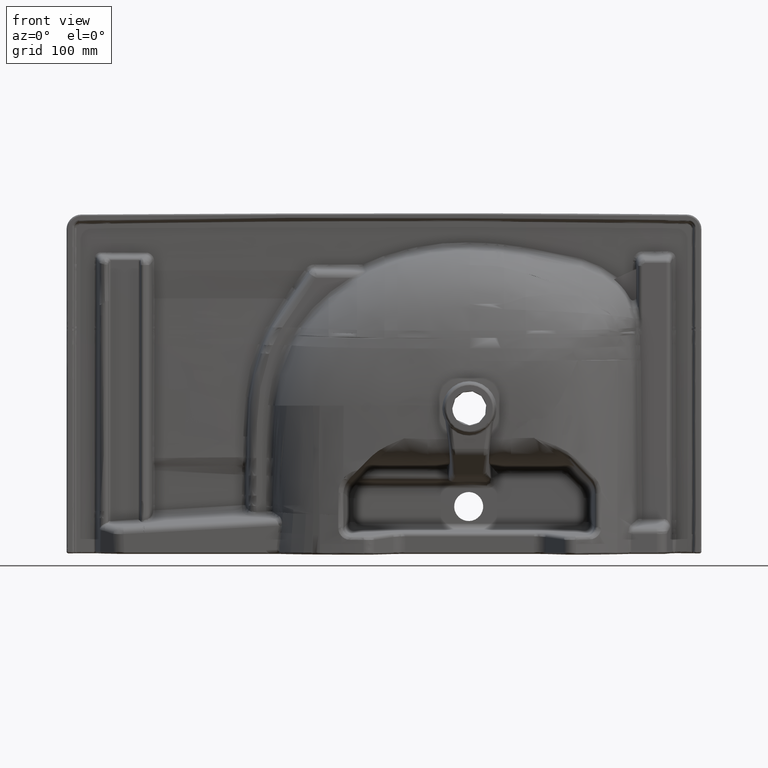
[diagram: clean part render]
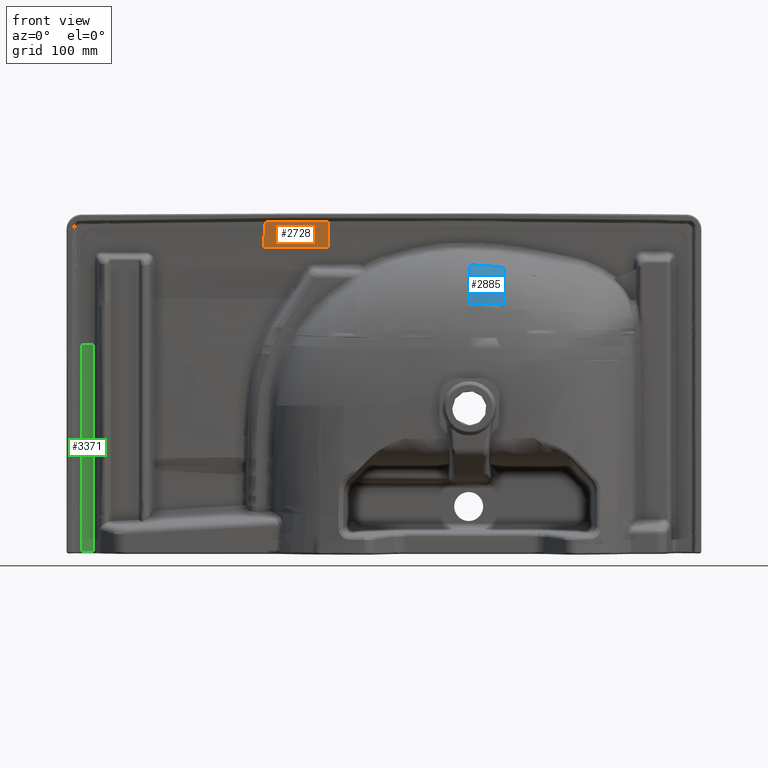
[diagram: same view with three faces highlighted in distinct colors, each labeled with its STEP entity id]
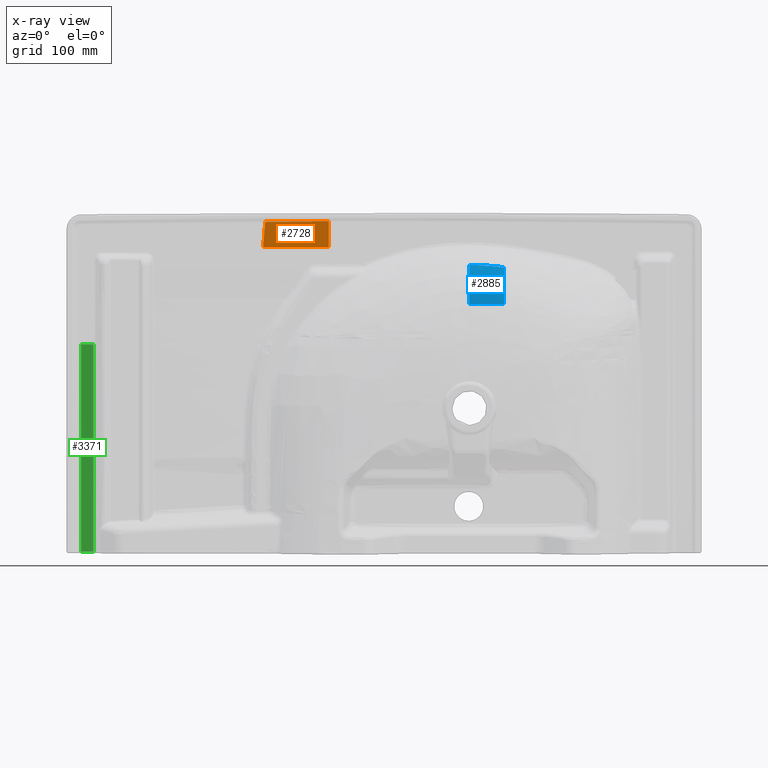
[diagram: x-ray of the same camera — body ghosted, the three highlighted faces saturated]
A machine part, front view with three faces highlighted in distinct colors.
The next image is the same camera in x-ray (body ghosted, the three faces saturated) — at least one of them is partly hidden behind the body in this view.
Their STEP definitions:

[orange] entity #2728 — the highlighted face is a freeform B-spline surface patch.
#2273=B_SPLINE_SURFACE_WITH_KNOTS('',3,3,((#42595,#42596,#42597,#42598),
(#42599,#42600,#42601,#42602),(#42603,#42604,#42605,#42606),(#42607,#42608,
#42609,#42610)),.UNSPECIFIED.,.F.,.F.,.F.,(4,4),(4,4),(0.,1.),(0.,1.),
 .UNSPECIFIED.);
#2728=ADVANCED_FACE('',(#4449),#2273,.T.);
#4449=FACE_OUTER_BOUND('',#5755,.T.);
#5755=EDGE_LOOP('',(#7716,#7717,#7718,#7719));
#7716=ORIENTED_EDGE('',*,*,#15592,.F.);
#7717=ORIENTED_EDGE('',*,*,#15593,.F.);
#7718=ORIENTED_EDGE('',*,*,#15594,.F.);
#7719=ORIENTED_EDGE('',*,*,#15595,.F.);
#13714=VERTEX_POINT('',#42577);
#13715=VERTEX_POINT('',#42578);
#13716=VERTEX_POINT('',#42585);
#13717=VERTEX_POINT('',#42590);
#15592=EDGE_CURVE('',#13714,#13715,#18608,.T.);
#15593=EDGE_CURVE('',#13716,#13714,#18609,.T.);
#15594=EDGE_CURVE('',#13717,#13716,#18610,.T.);
#15595=EDGE_CURVE('',#13715,#13717,#18611,.T.);
#18608=B_SPLINE_CURVE_WITH_KNOTS('',3,(#42573,#42574,#42575,#42576),
 .UNSPECIFIED.,.F.,.F.,(4,4),(0.,1.),.UNSPECIFIED.);
#18609=B_SPLINE_CURVE_WITH_KNOTS('',3,(#42579,#42580,#42581,#42582,#42583,
#42584),.UNSPECIFIED.,.F.,.F.,(4,2,4),(0.,0.515290433342165,1.),
 .UNSPECIFIED.);
#18610=B_SPLINE_CURVE_WITH_KNOTS('',3,(#42586,#42587,#42588,#42589),
 .UNSPECIFIED.,.F.,.F.,(4,4),(0.,1.),.UNSPECIFIED.);
#18611=B_SPLINE_CURVE_WITH_KNOTS('',3,(#42591,#42592,#42593,#42594),
 .UNSPECIFIED.,.F.,.F.,(4,4),(0.,1.),.UNSPECIFIED.);
#42573=CARTESIAN_POINT('',(-277.259585931258,-341.920008518953,-20.3458921221167));
#42574=CARTESIAN_POINT('',(-276.298730027962,-353.208415221619,-20.7095877217784));
#42575=CARTESIAN_POINT('',(-275.336697502174,-364.496642634981,-21.0757482760457));
#42576=CARTESIAN_POINT('',(-274.373581909266,-375.784703243393,-21.4441780474096));
#42577=CARTESIAN_POINT('',(-277.259585831486,-341.92006586475,-20.3458820647441));
#42578=CARTESIAN_POINT('',(-274.373581909266,-375.784703243393,-21.4441780474096));
#42579=CARTESIAN_POINT('',(-189.375188928945,-341.893337613698,-20.8548033108633));
#42580=CARTESIAN_POINT('',(-204.470688926794,-341.896634215894,-20.8050073578269));
#42581=CARTESIAN_POINT('',(-219.56611037028,-341.90068509365,-20.7341244147978));
#42582=CARTESIAN_POINT('',(-248.860935021331,-341.910010229541,-20.5556426750433));
#42583=CARTESIAN_POINT('',(-263.060312512101,-341.914887884068,-20.4568818502418));
#42584=CARTESIAN_POINT('',(-277.259585731713,-341.920123210546,-20.3458720073716));
#42585=CARTESIAN_POINT('',(-189.37387262501,-341.893337386034,-20.854807654957));
#42586=CARTESIAN_POINT('',(-189.372556321076,-376.262950116371,-22.0458397240105));
#42587=CARTESIAN_POINT('',(-189.372556321076,-364.806436208815,-21.6481458581793));
#42588=CARTESIAN_POINT('',(-189.372556321076,-353.349899814649,-21.2510990511956));
#42589=CARTESIAN_POINT('',(-189.372556321076,-341.89333715837,-20.8548119990507));
#42590=CARTESIAN_POINT('',(-189.372556321068,-376.262950116371,-22.0458397240106));
#42591=CARTESIAN_POINT('',(-274.373581909266,-375.784703243393,-21.4441780474096));
#42592=CARTESIAN_POINT('',(-246.040741249501,-376.001860642223,-21.7172700127208));
#42593=CARTESIAN_POINT('',(-217.707083880771,-376.160293420754,-21.9211356461091));
#42594=CARTESIAN_POINT('',(-189.372556321064,-376.262950116371,-22.0458397240106));
#42595=CARTESIAN_POINT('',(-277.786361307426,-341.457012889161,-20.3271586979449));
#42596=CARTESIAN_POINT('',(-277.798659338838,-353.002280917904,-20.6909889913656));
#42597=CARTESIAN_POINT('',(-277.810932839042,-364.547598697693,-21.0557035383968));
#42598=CARTESIAN_POINT('',(-277.823178983846,-376.092966019346,-21.4212019232891));
#42599=CARTESIAN_POINT('',(-248.142411949837,-341.561430101912,-20.5629074045653));
#42600=CARTESIAN_POINT('',(-248.150686259475,-353.129028340342,-20.9449141924189));
#42601=CARTESIAN_POINT('',(-248.158936665103,-364.696678691939,-21.3277732062435));
#42602=CARTESIAN_POINT('',(-248.167160350389,-376.264380956965,-21.7113785236903));
#42603=CARTESIAN_POINT('',(-218.483569102701,-341.64268659406,-20.7510274801431));
#42604=CARTESIAN_POINT('',(-218.491185608428,-353.226750269828,-21.1421311965223));
#42605=CARTESIAN_POINT('',(-218.498778584987,-364.810868657606,-21.5340475358036));
#42606=CARTESIAN_POINT('',(-218.506345145432,-376.395041568524,-21.9266651189093));
#42607=CARTESIAN_POINT('',(-188.825058109079,-341.687960110087,-20.8495059618888));
#42608=CARTESIAN_POINT('',(-188.831764094897,-353.282088343943,-21.2507000081227));
#42609=CARTESIAN_POINT('',(-188.838446894782,-364.876273874265,-21.6526684864225));
#42610=CARTESIAN_POINT('',(-188.845103558753,-376.470516522512,-22.0552945567964));

[blue] entity #2885 — the highlighted face is a freeform B-spline surface patch.
#2344=B_SPLINE_SURFACE_WITH_KNOTS('',3,3,((#48957,#48958,#48959,#48960,
#48961,#48962,#48963,#48964,#48965,#48966,#48967,#48968,#48969,#48970,#48971,
#48972,#48973,#48974,#48975),(#48976,#48977,#48978,#48979,#48980,#48981,
#48982,#48983,#48984,#48985,#48986,#48987,#48988,#48989,#48990,#48991,#48992,
#48993,#48994),(#48995,#48996,#48997,#48998,#48999,#49000,#49001,#49002,
#49003,#49004,#49005,#49006,#49007,#49008,#49009,#49010,#49011,#49012,#49013),
(#49014,#49015,#49016,#49017,#49018,#49019,#49020,#49021,#49022,#49023,
#49024,#49025,#49026,#49027,#49028,#49029,#49030,#49031,#49032),(#49033,
#49034,#49035,#49036,#49037,#49038,#49039,#49040,#49041,#49042,#49043,#49044,
#49045,#49046,#49047,#49048,#49049,#49050,#49051),(#49052,#49053,#49054,
#49055,#49056,#49057,#49058,#49059,#49060,#49061,#49062,#49063,#49064,#49065,
#49066,#49067,#49068,#49069,#49070),(#49071,#49072,#49073,#49074,#49075,
#49076,#49077,#49078,#49079,#49080,#49081,#49082,#49083,#49084,#49085,#49086,
#49087,#49088,#49089),(#49090,#49091,#49092,#49093,#49094,#49095,#49096,
#49097,#49098,#49099,#49100,#49101,#49102,#49103,#49104,#49105,#49106,#49107,
#49108),(#49109,#49110,#49111,#49112,#49113,#49114,#49115,#49116,#49117,
#49118,#49119,#49120,#49121,#49122,#49123,#49124,#49125,#49126,#49127),
(#49128,#49129,#49130,#49131,#49132,#49133,#49134,#49135,#49136,#49137,
#49138,#49139,#49140,#49141,#49142,#49143,#49144,#49145,#49146),(#49147,
#49148,#49149,#49150,#49151,#49152,#49153,#49154,#49155,#49156,#49157,#49158,
#49159,#49160,#49161,#49162,#49163,#49164,#49165),(#49166,#49167,#49168,
#49169,#49170,#49171,#49172,#49173,#49174,#49175,#49176,#49177,#49178,#49179,
#49180,#49181,#49182,#49183,#49184),(#49185,#49186,#49187,#49188,#49189,
#49190,#49191,#49192,#49193,#49194,#49195,#49196,#49197,#49198,#49199,#49200,
#49201,#49202,#49203)),.UNSPECIFIED.,.F.,.F.,.F.,(4,3,3,3,4),(4,3,3,3,3,
3,4),(0.,0.25,0.5,0.75,1.),(0.,0.125,0.25,0.5,0.625,0.75,1.),
 .UNSPECIFIED.);
#2885=ADVANCED_FACE('',(#4606),#2344,.T.);
#4606=FACE_OUTER_BOUND('',#5912,.T.);
#5912=EDGE_LOOP('',(#8420,#8421,#8422,#8423,#8424,#8425));
#8420=ORIENTED_EDGE('',*,*,#15967,.F.);
#8421=ORIENTED_EDGE('',*,*,#15968,.T.);
#8422=ORIENTED_EDGE('',*,*,#15969,.T.);
#8423=ORIENTED_EDGE('',*,*,#15872,.T.);
#8424=ORIENTED_EDGE('',*,*,#15834,.T.);
#8425=ORIENTED_EDGE('',*,*,#15831,.T.);
#13810=VERTEX_POINT('',#45169);
#13851=VERTEX_POINT('',#46131);
#13853=VERTEX_POINT('',#46137);
#13877=VERTEX_POINT('',#46859);
#13931=VERTEX_POINT('',#48795);
#13932=VERTEX_POINT('',#48952);
#15831=EDGE_CURVE('',#13853,#13851,#18789,.T.);
#15834=EDGE_CURVE('',#13810,#13853,#18792,.T.);
#15872=EDGE_CURVE('',#13877,#13810,#18825,.T.);
#15967=EDGE_CURVE('',#13931,#13851,#18889,.T.);
#15968=EDGE_CURVE('',#13931,#13932,#18890,.T.);
#15969=EDGE_CURVE('',#13932,#13877,#18891,.T.);
#18789=B_SPLINE_CURVE_WITH_KNOTS('',3,(#46133,#46134,#46135,#46136),
 .UNSPECIFIED.,.F.,.F.,(4,4),(0.,1.),.UNSPECIFIED.);
#18792=B_SPLINE_CURVE_WITH_KNOTS('',3,(#46174,#46175,#46176,#46177),
 .UNSPECIFIED.,.F.,.F.,(4,4),(0.,1.),.UNSPECIFIED.);
#18825=B_SPLINE_CURVE_WITH_KNOTS('',3,(#46849,#46850,#46851,#46852,#46853,
#46854,#46855,#46856,#46857,#46858),.UNSPECIFIED.,.F.,.F.,(4,2,2,2,4),(0.,
0.25,0.5,0.75,1.),.UNSPECIFIED.);
#18889=B_SPLINE_CURVE_WITH_KNOTS('',3,(#48796,#48797,#48798,#48799),
 .UNSPECIFIED.,.F.,.F.,(4,4),(0.,1.),.UNSPECIFIED.);
#18890=B_SPLINE_CURVE_WITH_KNOTS('',3,(#48940,#48941,#48942,#48943,#48944,
#48945,#48946,#48947,#48948,#48949,#48950,#48951),.UNSPECIFIED.,.F.,.F.,
(4,2,2,2,2,4),(0.,0.125,0.25,0.5,0.75,1.),.UNSPECIFIED.);
#18891=B_SPLINE_CURVE_WITH_KNOTS('',3,(#48953,#48954,#48955,#48956),
 .UNSPECIFIED.,.F.,.F.,(4,4),(0.,1.),.UNSPECIFIED.);
#45169=CARTESIAN_POINT('',(46.6771027324499,-314.225243891857,-78.7467857619092));
#46131=CARTESIAN_POINT('',(8.63590106481254,-317.714266869076,-78.9269526552541));
#46133=CARTESIAN_POINT('',(37.2271027324594,-315.699894576944,-78.8240689295326));
#46134=CARTESIAN_POINT('',(27.798640103383,-316.925796921416,-78.8883157490242));
#46135=CARTESIAN_POINT('',(18.28558872413,-317.434355335772,-78.9149681661568));
#46136=CARTESIAN_POINT('',(8.74496240574051,-317.70906805349,-78.9293652496332));
#46137=CARTESIAN_POINT('',(37.2271027324596,-315.699894576946,-78.8240689295301));
#46174=CARTESIAN_POINT('',(46.6771027324504,-314.225243891857,-78.7467857619093));
#46175=CARTESIAN_POINT('',(43.5368000444922,-314.805376509203,-78.7701686000069));
#46176=CARTESIAN_POINT('',(40.3801429093361,-315.295743895946,-78.7957806741998));
#46177=CARTESIAN_POINT('',(37.2271027324594,-315.699894576944,-78.8240689295324));
#46849=CARTESIAN_POINT('',(46.6771027324592,-265.409034999292,-112.252882968467));
#46850=CARTESIAN_POINT('',(46.6771027324592,-270.090672556004,-110.490601269427));
#46851=CARTESIAN_POINT('',(46.6771027324595,-274.684674512238,-108.528206807158));
#46852=CARTESIAN_POINT('',(46.6771027324595,-283.61051752563,-104.004782834331));
#46853=CARTESIAN_POINT('',(46.6771027324591,-287.965100455135,-101.424140296751));
#46854=CARTESIAN_POINT('',(46.677102732459,-296.187315156118,-95.7683168583903));
#46855=CARTESIAN_POINT('',(46.6771027324589,-300.070686614507,-92.6797098387205));
#46856=CARTESIAN_POINT('',(46.6771027324589,-307.440462697528,-86.0480773629385));
#46857=CARTESIAN_POINT('',(46.6771027324591,-310.953582064923,-82.5356329796117));
#46858=CARTESIAN_POINT('',(46.6771027324591,-314.225243891856,-78.746785761909));
#46859=CARTESIAN_POINT('',(46.6771027324594,-265.409034999293,-112.252882968467));
#48795=CARTESIAN_POINT('',(0.144676804151766,-317.522711475383,-79.3674435301628));
#48796=CARTESIAN_POINT('',(0.144518058125211,-317.523685974936,-79.3682724551218));
#48797=CARTESIAN_POINT('',(2.937932969423,-317.604263249981,-79.2221140099398));
#48798=CARTESIAN_POINT('',(5.73236116094078,-317.671768693203,-79.0759025337686));
#48799=CARTESIAN_POINT('',(8.52702205254518,-317.715051418454,-78.9296788790158));
#48940=CARTESIAN_POINT('',(0.144570940834238,-317.52710350195,-79.3711653918266));
#48941=CARTESIAN_POINT('',(0.142349766184604,-315.769156242269,-81.4262417653002));
#48942=CARTESIAN_POINT('',(0.140994771100907,-313.988919616545,-83.3394522209296));
#48943=CARTESIAN_POINT('',(0.137936807053437,-310.330810848792,-87.0683347470841));
#48944=CARTESIAN_POINT('',(0.135932607775407,-308.434764921342,-88.8895261898608));
#48945=CARTESIAN_POINT('',(0.128867297151908,-302.532603270621,-94.1886106427598));
#48946=CARTESIAN_POINT('',(0.122595062282763,-298.288652568799,-97.5050179494013));
#48947=CARTESIAN_POINT('',(0.11226677724475,-289.344529893239,-103.451595581677));
#48948=CARTESIAN_POINT('',(0.107268086500618,-284.604890781108,-106.107164920872));
#48949=CARTESIAN_POINT('',(0.101323529119899,-274.976437210975,-110.661873413082));
#48950=CARTESIAN_POINT('',(0.100422980049738,-270.113571473505,-112.581148921733));
#48951=CARTESIAN_POINT('',(0.0986932582040273,-265.303503673876,-114.266540613575));
#48952=CARTESIAN_POINT('',(0.0986504987027176,-265.303398032333,-114.26623873775));
#48953=CARTESIAN_POINT('',(0.0986932582075634,-265.303503673876,-114.266540613575));
#48954=CARTESIAN_POINT('',(15.6457062392232,-265.310797084069,-114.127374056767));
#48955=CARTESIAN_POINT('',(31.1849844784979,-265.328421407606,-113.791081930323));
#48956=CARTESIAN_POINT('',(46.6771027324621,-265.409034999293,-112.252882968467));
#48957=CARTESIAN_POINT('',(62.2122169738954,-310.633543881327,-78.6286211728233));
#48958=CARTESIAN_POINT('',(61.5543970867135,-308.930367387738,-80.7590259739709));
#48959=CARTESIAN_POINT('',(60.8925296857266,-307.184895782669,-82.751697377793));
#48960=CARTESIAN_POINT('',(60.2272557181451,-305.418658548744,-84.6604988991286));
#48961=CARTESIAN_POINT('',(59.5619817505635,-303.652421314819,-86.5693004204642));
#48962=CARTESIAN_POINT('',(58.8816716292423,-301.824190414955,-88.4318206058856));
#48963=CARTESIAN_POINT('',(58.1895884193637,-299.928961495069,-90.2364052601873));
#48964=CARTESIAN_POINT('',(56.8054219996066,-296.138503655298,-93.8455745687906));
#48965=CARTESIAN_POINT('',(55.3701019302041,-292.055532391919,-97.2282077807138));
#48966=CARTESIAN_POINT('',(53.9305294506452,-287.746778286732,-100.253235341311));
#48967=CARTESIAN_POINT('',(53.2107432108658,-285.592401234139,-101.76574912161));
#48968=CARTESIAN_POINT('',(52.4891201228324,-283.38269327013,-103.193080462904));
#48969=CARTESIAN_POINT('',(51.7682070724017,-281.122974146261,-104.532335318424));
#48970=CARTESIAN_POINT('',(51.047294021971,-278.863255022392,-105.871590173945));
#48971=CARTESIAN_POINT('',(50.3263617238706,-276.548007273598,-107.121911199584));
#48972=CARTESIAN_POINT('',(49.6163776748349,-274.226017663781,-108.27345359238));
#48973=CARTESIAN_POINT('',(48.1964095767634,-269.582038444147,-110.576538377971));
#48974=CARTESIAN_POINT('',(46.8134255575297,-264.894904652879,-112.508957578807));
#48975=CARTESIAN_POINT('',(45.4571919693294,-260.261244058722,-114.210623662219));
#48976=CARTESIAN_POINT('',(57.1788034625498,-312.1067985368,-78.5629756836396));
#48977=CARTESIAN_POINT('',(56.5742664916171,-310.388419163833,-80.6999594084731));
#48978=CARTESIAN_POINT('',(55.9659226622095,-308.626527321559,-82.697557636885));
#48979=CARTESIAN_POINT('',(55.3543782603299,-306.843115300427,-84.6108076830922));
#48980=CARTESIAN_POINT('',(54.7428338584503,-305.059703279295,-86.5240577292994));
#48981=CARTESIAN_POINT('',(54.1171620650154,-303.212566029021,-88.3912996857721));
#48982=CARTESIAN_POINT('',(53.4804165564155,-301.296769530862,-90.2006831524477));
#48983=CARTESIAN_POINT('',(52.2069255392155,-297.465176534544,-93.8194500857988));
#48984=CARTESIAN_POINT('',(50.8853815176146,-293.334008575904,-97.2120392141548));
#48985=CARTESIAN_POINT('',(49.5596437900837,-288.972675554365,-100.245347516246));
#48986=CARTESIAN_POINT('',(48.8967749263183,-286.792009043596,-101.762001667291));
#48987=CARTESIAN_POINT('',(48.232125064764,-284.55491389352,-103.193113305914));
#48988=CARTESIAN_POINT('',(47.5680530096992,-282.266924899087,-104.535715811299));
#48989=CARTESIAN_POINT('',(46.9039809546345,-279.978935904654,-105.878318316685));
#48990=CARTESIAN_POINT('',(46.2398159806772,-277.63447418798,-107.131535343568));
#48991=CARTESIAN_POINT('',(45.5856796589374,-275.283100031879,-108.28545646556));
#48992=CARTESIAN_POINT('',(44.2774070154577,-270.580351719677,-110.593298709544));
#48993=CARTESIAN_POINT('',(43.0028812211543,-265.833242198948,-112.528723929595));
#48994=CARTESIAN_POINT('',(41.7525189502198,-261.140153331524,-114.232088357947));
#48995=CARTESIAN_POINT('',(52.0076775035394,-313.417756808701,-78.4991828588661));
#48996=CARTESIAN_POINT('',(51.4583591181595,-311.685013012213,-80.6424916733569));
#48997=CARTESIAN_POINT('',(50.9053702511389,-309.90773827923,-82.6447773062428));
#48998=CARTESIAN_POINT('',(50.3493434870769,-308.108339326026,-84.5622258916367));
#48999=CARTESIAN_POINT('',(49.7933167230149,-306.308940372822,-86.4796744770305));
#49000=CARTESIAN_POINT('',(49.2244896509219,-304.444154284087,-88.3513887352853));
#49001=CARTESIAN_POINT('',(48.6456902540417,-302.509121096746,-90.1653323735609));
#49002=CARTESIAN_POINT('',(47.4880914602812,-298.639054722062,-93.7932196501122));
#49003=CARTESIAN_POINT('',(46.2873551024648,-294.462621653043,-97.1953372764918));
#49004=CARTESIAN_POINT('',(45.0831150701241,-290.05213660167,-100.23660710112));
#49005=CARTESIAN_POINT('',(44.4809950539537,-287.846894075984,-101.757242013434));
#49006=CARTESIAN_POINT('',(43.8773221726552,-285.584241519025,-103.19200032275));
#49007=CARTESIAN_POINT('',(43.2742100305789,-283.269926990475,-104.53784963326));
#49008=CARTESIAN_POINT('',(42.6710978885025,-280.955612461925,-105.88369894377));
#49009=CARTESIAN_POINT('',(42.067971425114,-278.583994515386,-107.139746623154));
#49010=CARTESIAN_POINT('',(41.473683973206,-276.20543293635,-108.296010085261));
#49011=CARTESIAN_POINT('',(40.2851090693899,-271.448309778277,-110.608537009475));
#49012=CARTESIAN_POINT('',(39.1262060377012,-266.646131948607,-112.547003436304));
#49013=CARTESIAN_POINT('',(37.9881806361309,-261.89873401387,-114.25212206907));
#49014=CARTESIAN_POINT('',(46.795878777147,-314.46414846338,-78.4424986670738));
#49015=CARTESIAN_POINT('',(46.3023413427293,-312.719290159027,-80.5909984896687));
#49016=CARTESIAN_POINT('',(45.8053382685439,-310.929175653842,-82.597123926857));
#49017=CARTESIAN_POINT('',(45.3055115103627,-309.116565189799,-84.5180328990548));
#49018=CARTESIAN_POINT('',(44.8056847521815,-307.303954725755,-86.4389418712525));
#49019=CARTESIAN_POINT('',(44.2944685537038,-305.424713286629,-88.3143899055411));
#49020=CARTESIAN_POINT('',(43.7744388745961,-303.474026240156,-90.1321903061249));
#49021=CARTESIAN_POINT('',(42.7343795163806,-299.57265214721,-93.7677911072925));
#49022=CARTESIAN_POINT('',(41.6563154121335,-295.359785281527,-97.178170524647));
#49023=CARTESIAN_POINT('',(40.575431860659,-290.909850510032,-100.226616086441));
#49024=CARTESIAN_POINT('',(40.0349900849217,-288.684883124284,-101.750838867338));
#49025=CARTESIAN_POINT('',(39.4932270847003,-286.401746334261,-103.188953867979));
#49026=CARTESIAN_POINT('',(38.951997698277,-284.066344888715,-104.537852642703));
#49027=CARTESIAN_POINT('',(38.4107683118537,-281.73094344317,-105.886751417427));
#49028=CARTESIAN_POINT('',(37.8695850153892,-279.337585553239,-107.145529632815));
#49029=CARTESIAN_POINT('',(37.3360797345286,-276.937250942184,-108.304108024857));
#49030=CARTESIAN_POINT('',(36.2690691728073,-272.136581720073,-110.62126480894));
#49031=CARTESIAN_POINT('',(35.2277829177853,-267.290258716165,-112.562956377161));
#49032=CARTESIAN_POINT('',(34.2042364754701,-262.499412546782,-114.270010568761));
#49033=CARTESIAN_POINT('',(41.5840800507546,-315.510540118058,-78.3858144752816));
#49034=CARTESIAN_POINT('',(41.1463235672991,-313.753567305841,-80.5395053059804));
#49035=CARTESIAN_POINT('',(40.705306285949,-311.950613028455,-82.5494705474713));
#49036=CARTESIAN_POINT('',(40.2616795336485,-310.124791053572,-84.4738399064729));
#49037=CARTESIAN_POINT('',(39.8180527813481,-308.298969078688,-86.3982092654744));
#49038=CARTESIAN_POINT('',(39.3644474564857,-306.40527228917,-88.2773910757969));
#49039=CARTESIAN_POINT('',(38.9031874951504,-304.438931383566,-90.0990482386889));
#49040=CARTESIAN_POINT('',(37.9806675724799,-300.506249572357,-93.7423625644728));
#49041=CARTESIAN_POINT('',(37.0252757218022,-296.256948910011,-97.1610037728022));
#49042=CARTESIAN_POINT('',(36.0677486511939,-291.767564418394,-100.216625071763));
#49043=CARTESIAN_POINT('',(35.5889851158897,-289.522872172585,-101.744435721243));
#49044=CARTESIAN_POINT('',(35.1091319967454,-287.219251149496,-103.185907413208));
#49045=CARTESIAN_POINT('',(34.6297853659752,-284.862762786955,-104.537855652146));
#49046=CARTESIAN_POINT('',(34.1504387352049,-282.506274424414,-105.889803891085));
#49047=CARTESIAN_POINT('',(33.6711986056644,-280.091176591091,-107.151312642475));
#49048=CARTESIAN_POINT('',(33.1984754958512,-277.669068948018,-108.312205964452));
#49049=CARTESIAN_POINT('',(32.2530292762247,-272.82485366187,-110.633992608406));
#49050=CARTESIAN_POINT('',(31.3293597978694,-267.934385483723,-112.578909318017));
#49051=CARTESIAN_POINT('',(30.4202923148094,-263.100091079695,-114.287899068451));
#49052=CARTESIAN_POINT('',(36.3260168191998,-316.305153847148,-78.335395264976));
#49053=CARTESIAN_POINT('',(35.9446946777574,-314.538303773651,-80.4932406470034));
#49054=CARTESIAN_POINT('',(35.5603587299667,-312.725029334249,-82.5062704293241));
#49055=CARTESIAN_POINT('',(35.1736628419999,-310.888737104276,-84.4334217539032));
#49056=CARTESIAN_POINT('',(34.7869669540331,-309.052444874303,-86.3605730784822));
#49057=CARTESIAN_POINT('',(34.3918108511061,-307.147414682156,-88.2428124009735));
#49058=CARTESIAN_POINT('',(33.9902428799308,-305.168894379638,-90.0676850683571));
#49059=CARTESIAN_POINT('',(33.1871069375804,-301.211853774602,-93.7174304031242));
#49060=CARTESIAN_POINT('',(32.3565751367768,-296.934570241051,-97.1431933552452));
#49061=CARTESIAN_POINT('',(31.5246455965596,-292.41498616601,-100.205290287504));
#49062=CARTESIAN_POINT('',(31.108680826451,-290.15519412849,-101.736338753633));
#49063=CARTESIAN_POINT('',(30.6918771672655,-287.835917299594,-103.180911359935));
#49064=CARTESIAN_POINT('',(30.2755564456653,-285.463322694764,-104.535738003675));
#49065=CARTESIAN_POINT('',(29.8592357240651,-283.090728089935,-105.890564647414));
#49066=CARTESIAN_POINT('',(29.4430823378731,-280.6590332243,-107.154722073612));
#49067=CARTESIAN_POINT('',(29.032285418394,-278.220306647701,-108.317912762589));
#49068=CARTESIAN_POINT('',(28.2106915794357,-273.342853494504,-110.644294140543));
#49069=CARTESIAN_POINT('',(27.4069616408173,-268.418678659554,-112.592613381204));
#49070=CARTESIAN_POINT('',(26.614754812258,-263.551333437211,-114.303711180607));
#49071=CARTESIAN_POINT('',(31.0857192664916,-316.881437961121,-78.2922252475118));
#49072=CARTESIAN_POINT('',(30.7603668262069,-315.107231003264,-80.4532667518722));
#49073=CARTESIAN_POINT('',(30.4323283187284,-313.286369782853,-82.468663233599));
#49074=CARTESIAN_POINT('',(30.1022290185018,-311.442495317149,-84.3979840576643));
#49075=CARTESIAN_POINT('',(29.7721297182752,-309.598620851444,-86.3273048817297));
#49076=CARTESIAN_POINT('',(29.4349951332627,-307.685478294108,-88.2119601223948));
#49077=CARTESIAN_POINT('',(29.092591125903,-305.698308719134,-90.0394156253355));
#49078=CARTESIAN_POINT('',(28.4077831111837,-301.723969569185,-93.6943266312168));
#49079=CARTESIAN_POINT('',(27.7005666053778,-297.42710109528,-97.1259761015485));
#49080=CARTESIAN_POINT('',(26.9925584637594,-292.886331766617,-100.193731386162));
#49081=CARTESIAN_POINT('',(26.6385543929501,-290.615947102285,-101.727609028468));
#49082=CARTESIAN_POINT('',(26.2839277226327,-288.285680424051,-103.174960634133));
#49083=CARTESIAN_POINT('',(25.929746062849,-285.901756735249,-104.532424879625));
#49084=CARTESIAN_POINT('',(25.5755644030654,-283.517833046447,-105.889889125116));
#49085=CARTESIAN_POINT('',(25.2215806852377,-281.074439734796,-107.15653932981));
#49086=CARTESIAN_POINT('',(24.8719364391424,-278.623963906469,-108.321944448798));
#49087=CARTESIAN_POINT('',(24.1726479469518,-273.723012249815,-110.652754686775));
#49088=CARTESIAN_POINT('',(23.4878032373112,-268.774843206975,-112.604552221348));
#49089=CARTESIAN_POINT('',(22.8117916576819,-263.883992802352,-114.317851905055));
#49090=CARTESIAN_POINT('',(25.8454217137835,-317.457722075094,-78.2490552300476));
#49091=CARTESIAN_POINT('',(25.5760389746563,-315.676158232877,-80.413292856741));
#49092=CARTESIAN_POINT('',(25.30429790749,-313.847710231458,-82.4310560378738));
#49093=CARTESIAN_POINT('',(25.0307951950036,-311.996253530022,-84.3625463614254));
#49094=CARTESIAN_POINT('',(24.7572924825172,-310.144796828585,-86.2940366849771));
#49095=CARTESIAN_POINT('',(24.4781794154193,-308.223541906059,-88.181107843816));
#49096=CARTESIAN_POINT('',(24.1949393718752,-306.227723058629,-90.0111461823139));
#49097=CARTESIAN_POINT('',(23.628459284787,-302.236085363769,-93.6712228593095));
#49098=CARTESIAN_POINT('',(23.0445580739788,-297.919631949508,-97.1087588478518));
#49099=CARTESIAN_POINT('',(22.4604713309591,-293.357677367223,-100.18217248482));
#49100=CARTESIAN_POINT('',(22.1684279594493,-291.07670007608,-101.718879303304));
#49101=CARTESIAN_POINT('',(21.8759782779999,-288.735443548508,-103.169009908331));
#49102=CARTESIAN_POINT('',(21.5839356800327,-286.340190775734,-104.529111755575));
#49103=CARTESIAN_POINT('',(21.2918930820656,-283.944938002959,-105.889213602819));
#49104=CARTESIAN_POINT('',(21.0000790326023,-281.489846245292,-107.158356586008));
#49105=CARTESIAN_POINT('',(20.7115874598908,-279.027621165237,-108.325976135007));
#49106=CARTESIAN_POINT('',(20.1346043144678,-274.103171005126,-110.661215233006));
#49107=CARTESIAN_POINT('',(19.568644833805,-269.131007754395,-112.616491061492));
#49108=CARTESIAN_POINT('',(19.0088285031058,-264.216652167493,-114.331992629503));
#49109=CARTESIAN_POINT('',(20.6585951528313,-317.819721323364,-78.2148077030865));
#49110=CARTESIAN_POINT('',(20.4438814752008,-316.033243395154,-80.3812549778328));
#49111=CARTESIAN_POINT('',(20.2272861502372,-314.199851978275,-82.4006647787987));
#49112=CARTESIAN_POINT('',(20.0093146016759,-312.343597347622,-84.3336918955695));
#49113=CARTESIAN_POINT('',(19.7913430531145,-310.487342716969,-86.2667190123402));
#49114=CARTESIAN_POINT('',(19.5689543846623,-308.56109129455,-88.1555252405556));
#49115=CARTESIAN_POINT('',(19.3433533265421,-306.56005124392,-89.9874584344618));
#49116=CARTESIAN_POINT('',(18.8921512103017,-302.557971142659,-93.6513248222743));
#49117=CARTESIAN_POINT('',(18.4274429004737,-298.230150799794,-97.0933284256628));
#49118=CARTESIAN_POINT('',(17.9629236891318,-293.65584595621,-100.171407468125));
#49119=CARTESIAN_POINT('',(17.7306640834609,-291.368693534418,-101.710446989356));
#49120=CARTESIAN_POINT('',(17.4981493079391,-289.021023637704,-103.162947486281));
#49121=CARTESIAN_POINT('',(17.2659850904398,-286.619128823889,-104.525362974629));
#49122=CARTESIAN_POINT('',(17.0338208729406,-284.217234010073,-105.887778462976));
#49123=CARTESIAN_POINT('',(16.8018707184999,-281.755253252524,-107.159178644017));
#49124=CARTESIAN_POINT('',(16.572496450632,-279.286043538417,-108.328864723078));
#49125=CARTESIAN_POINT('',(16.1137479148962,-274.347624110204,-110.668236881201));
#49126=CARTESIAN_POINT('',(15.6635161770533,-269.360913049572,-112.626985190269));
#49127=CARTESIAN_POINT('',(15.217438908149,-264.432294458794,-114.344724433524));
#49128=CARTESIAN_POINT('',(15.5061245811987,-318.078940248701,-78.1852687097881));
#49129=CARTESIAN_POINT('',(15.345488177308,-316.289416410918,-80.3536179978809));
#49130=CARTESIAN_POINT('',(15.1835311134673,-314.452938164334,-82.3744736586838));
#49131=CARTESIAN_POINT('',(15.0206417082958,-312.593704489358,-84.3088394464452));
#49132=CARTESIAN_POINT('',(14.8577523031242,-310.734470814382,-86.2432052342066));
#49133=CARTESIAN_POINT('',(14.6915114323542,-308.805102654969,-88.1334699955921));
#49134=CARTESIAN_POINT('',(14.5228370162306,-306.800794123043,-89.9669753875222));
#49135=CARTESIAN_POINT('',(14.1854881839835,-302.792177059192,-93.6339861713824));
#49136=CARTESIAN_POINT('',(13.8379008157825,-298.457256578951,-97.079610997366));
#49137=CARTESIAN_POINT('',(13.4906602589658,-293.875018586675,-100.161693402397));
#49138=CARTESIAN_POINT('',(13.3170399805574,-291.583899590537,-101.702734604912));
#49139=CARTESIAN_POINT('',(13.1432586559204,-289.232062251234,-103.157308000432));
#49140=CARTESIAN_POINT('',(12.9697345338973,-286.825798804112,-104.521783550194));
#49141=CARTESIAN_POINT('',(12.7962104118743,-284.41953535699,-105.886259099956));
#49142=CARTESIAN_POINT('',(12.6228293989418,-281.952975643056,-107.159707944804));
#49143=CARTESIAN_POINT('',(12.4514286676222,-279.479040470143,-108.331315443661));
#49144=CARTESIAN_POINT('',(12.108627204983,-274.531170124318,-110.674530441376));
#49145=CARTESIAN_POINT('',(11.7723267159346,-269.534265069425,-112.636673767714));
#49146=CARTESIAN_POINT('',(11.4386029281231,-264.595452178182,-114.35662756005));
#49147=CARTESIAN_POINT('',(10.3536540095661,-318.338159174037,-78.1557297164898));
#49148=CARTESIAN_POINT('',(10.2470948794151,-316.545589426681,-80.325981017929));
#49149=CARTESIAN_POINT('',(10.1397760766974,-314.706024350392,-82.3482825385688));
#49150=CARTESIAN_POINT('',(10.0319688149157,-312.843811631094,-84.2839869973209));
#49151=CARTESIAN_POINT('',(9.924161553134,-310.981598911796,-86.219691456073));
#49152=CARTESIAN_POINT('',(9.81406848004612,-309.049114015388,-88.1114147506286));
#49153=CARTESIAN_POINT('',(9.7023207059192,-307.041537002167,-89.9464923405826));
#49154=CARTESIAN_POINT('',(9.47882515766535,-303.026382975725,-93.6166475204905));
#49155=CARTESIAN_POINT('',(9.24835873109124,-298.684362358108,-97.0658935690693));
#49156=CARTESIAN_POINT('',(9.01839682879968,-294.09419121714,-100.151979336668));
#49157=CARTESIAN_POINT('',(8.9034158776539,-291.799105646657,-101.695022220468));
#49158=CARTESIAN_POINT('',(8.78836800390164,-289.443100864763,-103.151668514584));
#49159=CARTESIAN_POINT('',(8.67348397735477,-287.032468784335,-104.51820412576));
#49160=CARTESIAN_POINT('',(8.5585999508079,-284.621836703906,-105.884739736936));
#49161=CARTESIAN_POINT('',(8.44378807938371,-282.150698033588,-107.160237245592));
#49162=CARTESIAN_POINT('',(8.33036088461238,-279.672037401869,-108.333766164245));
#49163=CARTESIAN_POINT('',(8.10350649506972,-274.714716138431,-110.68082400155));
#49164=CARTESIAN_POINT('',(7.88113725481583,-269.707617089278,-112.646362345159));
#49165=CARTESIAN_POINT('',(7.65976694809724,-264.75860989757,-114.368530686577));
#49166=CARTESIAN_POINT('',(5.23614614767514,-318.490471607617,-78.1290732230738));
#49167=CARTESIAN_POINT('',(5.18341048880723,-316.697497022613,-80.3008794490029));
#49168=CARTESIAN_POINT('',(5.13055736922509,-314.857505453355,-82.3243935662446));
#49169=CARTESIAN_POINT('',(5.07772126499653,-312.994967794662,-84.2612060482839));
#49170=CARTESIAN_POINT('',(5.02488516076797,-311.132430135969,-86.1980185303232));
#49171=CARTESIAN_POINT('',(4.97070464751871,-309.199579901648,-88.0909113012247));
#49172=CARTESIAN_POINT('',(4.91550376754765,-307.191580702439,-89.9272477455713));
#49173=CARTESIAN_POINT('',(4.80510200760553,-303.175582304021,-93.5999206342645));
#49174=CARTESIAN_POINT('',(4.69030626364655,-298.832596516946,-97.0520612772584));
#49175=CARTESIAN_POINT('',(4.5758269690616,-294.240753878104,-100.141647334665));
#49176=CARTESIAN_POINT('',(4.51858732176912,-291.944832558683,-101.686440363368));
#49177=CARTESIAN_POINT('',(4.46128662921865,-289.587823916544,-103.144951926123));
#49178=CARTESIAN_POINT('',(4.4039780533605,-287.175999631041,-104.513388810251));
#49179=CARTESIAN_POINT('',(4.34666947750234,-284.764175345538,-105.881825694379));
#49180=CARTESIAN_POINT('',(4.28925849244492,-282.291653504,-107.159265180369));
#49181=CARTESIAN_POINT('',(4.23276933049968,-279.811404358253,-108.334657498641));
#49182=CARTESIAN_POINT('',(4.11979100660921,-274.850906066758,-110.685442135185));
#49183=CARTESIAN_POINT('',(4.00968937312234,-269.839690702571,-112.654425663976));
#49184=CARTESIAN_POINT('',(3.89939040267808,-264.886220878534,-114.378881942045));
#49185=CARTESIAN_POINT('',(0.145970114595334,-318.588460071637,-78.1081138680903));
#49186=CARTESIAN_POINT('',(0.143512962180267,-316.795288609538,-80.2814566504174));
#49187=CARTESIAN_POINT('',(0.141616795497308,-314.954898121912,-82.3062163295853));
#49188=CARTESIAN_POINT('',(0.140208157876792,-313.091880773473,-84.2441455036038));
#49189=CARTESIAN_POINT('',(0.138799520256276,-311.228863425034,-86.1820746776223));
#49190=CARTESIAN_POINT('',(0.136869229504912,-309.295391586664,-88.0760256745965));
#49191=CARTESIAN_POINT('',(0.134542631491164,-307.286657517449,-89.9134194248878));
#49192=CARTESIAN_POINT('',(0.129889435463666,-303.269189379018,-93.5882069254704));
#49193=CARTESIAN_POINT('',(0.123406782296387,-298.924456077531,-97.0424423416893));
#49194=CARTESIAN_POINT('',(0.118027999661275,-294.330106263231,-100.134786381495));
#49195=CARTESIAN_POINT('',(0.115338608343719,-292.032931356082,-101.680958401399));
#49196=CARTESIAN_POINT('',(0.11282898500338,-289.674484920431,-103.140967833416));
#49197=CARTESIAN_POINT('',(0.110484335808772,-287.26103881761,-104.51096033849));
#49198=CARTESIAN_POINT('',(0.108139686614165,-284.847592714788,-105.880952843564));
#49199=CARTESIAN_POINT('',(0.105904525940475,-282.373274427272,-107.160008915402));
#49200=CARTESIAN_POINT('',(0.104358015962581,-279.890967312871,-108.337015302755));
#49201=CARTESIAN_POINT('',(0.101264996006791,-274.926353084069,-110.691028077461));
#49202=CARTESIAN_POINT('',(0.100391963211679,-269.909882037158,-112.663209427886));
#49203=CARTESIAN_POINT('',(0.0985648012413277,-264.950603158181,-114.389797673869));

[green] entity #3371 — the highlighted face is a freeform B-spline surface patch.
#2475=B_SPLINE_SURFACE_WITH_KNOTS('',3,3,((#89704,#89705,#89706,#89707),
(#89708,#89709,#89710,#89711),(#89712,#89713,#89714,#89715),(#89716,#89717,
#89718,#89719)),.UNSPECIFIED.,.F.,.F.,.F.,(4,4),(4,4),(0.,1.),(0.,1.),
 .UNSPECIFIED.);
#3371=ADVANCED_FACE('',(#5088),#2475,.T.);
#5088=FACE_OUTER_BOUND('',#6402,.T.);
#6402=EDGE_LOOP('',(#10743,#10744,#10745,#10746,#10747));
#10743=ORIENTED_EDGE('',*,*,#17103,.T.);
#10744=ORIENTED_EDGE('',*,*,#17131,.T.);
#10745=ORIENTED_EDGE('',*,*,#17132,.F.);
#10746=ORIENTED_EDGE('',*,*,#17133,.F.);
#10747=ORIENTED_EDGE('',*,*,#16236,.T.);
#14079=VERTEX_POINT('',#67540);
#14081=VERTEX_POINT('',#67570);
#14455=VERTEX_POINT('',#82745);
#14592=VERTEX_POINT('',#89432);
#14606=VERTEX_POINT('',#89696);
#16236=EDGE_CURVE('',#14079,#14081,#19071,.T.);
#17103=EDGE_CURVE('',#14081,#14592,#19548,.T.);
#17131=EDGE_CURVE('',#14592,#14455,#19560,.T.);
#17132=EDGE_CURVE('',#14606,#14455,#19561,.T.);
#17133=EDGE_CURVE('',#14079,#14606,#19562,.T.);
#19071=B_SPLINE_CURVE_WITH_KNOTS('',3,(#67571,#67572,#67573,#67574),
 .UNSPECIFIED.,.F.,.F.,(4,4),(0.,1.),.UNSPECIFIED.);
#19548=B_SPLINE_CURVE_WITH_KNOTS('',3,(#89433,#89434,#89435,#89436,#89437,
#89438,#89439),.UNSPECIFIED.,.F.,.F.,(4,3,4),(0.,0.394502573322566,1.),
 .UNSPECIFIED.);
#19560=B_SPLINE_CURVE_WITH_KNOTS('',3,(#89682,#89683,#89684,#89685,#89686,
#89687,#89688,#89689,#89690,#89691),.UNSPECIFIED.,.F.,.F.,(4,3,3,4),(0.,
0.310976660723115,0.770325675365507,1.),.UNSPECIFIED.);
#19561=B_SPLINE_CURVE_WITH_KNOTS('',3,(#89692,#89693,#89694,#89695),
 .UNSPECIFIED.,.F.,.F.,(4,4),(0.,1.),.UNSPECIFIED.);
#19562=B_SPLINE_CURVE_WITH_KNOTS('',3,(#89697,#89698,#89699,#89700,#89701,
#89702,#89703),.UNSPECIFIED.,.F.,.F.,(4,3,4),(0.,0.418795869456823,1.),
 .UNSPECIFIED.);
#67540=CARTESIAN_POINT('',(-505.41840292972,-211.224910062402,-16.8690311500481));
#67570=CARTESIAN_POINT('',(-521.84859560253,-211.219152365968,-16.9788945426993));
#67571=CARTESIAN_POINT('',(-505.41840292972,-211.224910062402,-16.8690311500481));
#67572=CARTESIAN_POINT('',(-510.895149195438,-211.22311502046,-16.9032825906948));
#67573=CARTESIAN_POINT('',(-516.371869113136,-211.221105698382,-16.9416227399209));
#67574=CARTESIAN_POINT('',(-521.84859560253,-211.219152365968,-16.9788945426993));
#82745=CARTESIAN_POINT('',(-505.418399809433,67.7515369456665,-15.6079589727531));
#89432=CARTESIAN_POINT('',(-521.848595602531,67.7625128134419,-16.5655692183221));
#89433=CARTESIAN_POINT('',(-521.84859560253,-211.219152365968,-16.9788945426993));
#89434=CARTESIAN_POINT('',(-521.84859560253,-174.532833900519,-16.9183151871859));
#89435=CARTESIAN_POINT('',(-521.84859560253,-137.846505351896,-16.8639628896308));
#89436=CARTESIAN_POINT('',(-521.84859560253,-101.160177791151,-16.8091677037972));
#89437=CARTESIAN_POINT('',(-521.84859560253,-44.8526185162917,-16.7250659858154));
#89438=CARTESIAN_POINT('',(-521.84859560253,11.454945178843,-16.6438741727668));
#89439=CARTESIAN_POINT('',(-521.84859560253,67.7625128134419,-16.5655692183221));
#89682=CARTESIAN_POINT('',(-521.848595602531,67.7625128134419,-16.5655692183221));
#89683=CARTESIAN_POINT('',(-520.145554829268,67.7613551457658,-16.4646746265807));
#89684=CARTESIAN_POINT('',(-518.442545033269,67.7601901279208,-16.3632575471499));
#89685=CARTESIAN_POINT('',(-516.739499864271,67.7590327959809,-16.2624371763454));
#89686=CARTESIAN_POINT('',(-514.223903423682,67.7573232816582,-16.113513724078));
#89687=CARTESIAN_POINT('',(-511.708194344398,67.7556384596795,-15.9664655104434));
#89688=CARTESIAN_POINT('',(-509.192319706743,67.7539887621394,-15.8223174786109));
#89689=CARTESIAN_POINT('',(-507.934382891288,67.7531639136995,-15.7502434915356));
#89690=CARTESIAN_POINT('',(-506.676409615761,67.7523468108375,-15.6788032989931));
#89691=CARTESIAN_POINT('',(-505.41840292972,67.7515369476759,-15.6079591484708));
#89692=CARTESIAN_POINT('',(-505.41840292972,52.736705890235,-15.6746103060013));
#89693=CARTESIAN_POINT('',(-505.418398875241,57.7416866937146,-15.6523713845159));
#89694=CARTESIAN_POINT('',(-505.41839661714,62.7466303801021,-15.6301542009402));
#89695=CARTESIAN_POINT('',(-505.418396321978,67.7515369434207,-15.6079587763585));
#89696=CARTESIAN_POINT('',(-505.418402929719,52.7367058902346,-15.6746103060013));
#89697=CARTESIAN_POINT('',(-505.41840292972,-211.224910062402,-16.8690311500481));
#89698=CARTESIAN_POINT('',(-505.41840292972,-174.376258927554,-16.6964356772648));
#89699=CARTESIAN_POINT('',(-505.41840292972,-137.527579237458,-16.5299785649126));
#89700=CARTESIAN_POINT('',(-505.41840292972,-100.678902153764,-16.3630149863731));
#89701=CARTESIAN_POINT('',(-505.41840292972,-49.5403762554022,-16.1313032409059));
#89702=CARTESIAN_POINT('',(-505.41840292972,1.59815985741804,-15.9018349524029));
#89703=CARTESIAN_POINT('',(-505.41840292972,52.7367058902345,-15.6746103060013));
#89704=CARTESIAN_POINT('',(-521.947559525901,69.4316002093168,-16.5691424156034));
#89705=CARTESIAN_POINT('',(-522.249626510199,-24.7552714781428,-16.7162668778312));
#89706=CARTESIAN_POINT('',(-522.553427362521,-118.946023436855,-16.8482169730779));
#89707=CARTESIAN_POINT('',(-522.857469075822,-213.127403301369,-16.9885170176176));
#89708=CARTESIAN_POINT('',(-516.081213259364,69.780325593334,-16.2193481077206));
#89709=CARTESIAN_POINT('',(-516.386161637608,-24.4973765054451,-16.4706803686789));
#89710=CARTESIAN_POINT('',(-516.692926306226,-118.778947968398,-16.7068064703352));
#89711=CARTESIAN_POINT('',(-516.999996765762,-213.051203958337,-16.9511261287805));
#89712=CARTESIAN_POINT('',(-510.267752494918,70.1219368247515,-15.8716553967457));
#89713=CARTESIAN_POINT('',(-510.564959841453,-24.2446699618116,-16.2251504542219));
#89714=CARTESIAN_POINT('',(-510.863775510668,-118.615133865277,-16.5639666537311));
#89715=CARTESIAN_POINT('',(-511.162807356109,-212.976337124994,-16.9114210377467));
#89716=CARTESIAN_POINT('',(-504.439140082447,70.4557361493973,-15.5404636813924));
#89717=CARTESIAN_POINT('',(-504.731602222278,-23.9978482954074,-15.9923461627876));
#89718=CARTESIAN_POINT('',(-505.025565681823,-118.455276482028,-16.4298887184324));
#89719=CARTESIAN_POINT('',(-505.319707755842,-212.903497269681,-16.8763114712175));